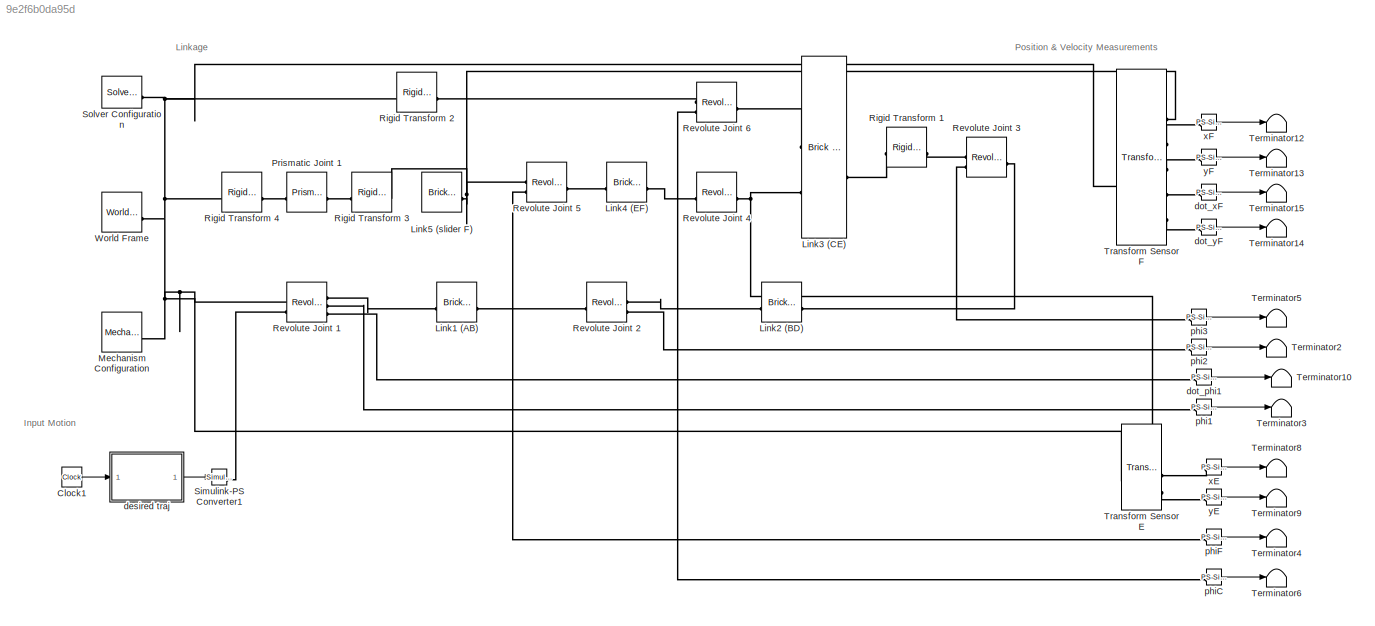
MODEL slx_9e2f6b0da95d
KIND model
CONFIG AbsTol = 1e-3
CONFIG EnableMultiTasking = on
CONFIG FixedStep = 0.001
CONFIG MaxStep = auto
CONFIG MinStep = auto
CONFIG RelTol = 1e-3
CONFIG SampleTimeConstraint = Unconstrained
CONFIG SolverName = ode4
CONFIG StartTime = 0.0
CONFIG StopTime = 10
BLOCK [Clock] Clock1
BLOCK [Reference] Link1 (AB)  REF=sm_lib/Body Elements/Brick Solid
  SourceBlock = sm_lib/Body Elements/Brick Solid
  SourceType = Brick Solid
BLOCK [Reference] Link2 (BD)  REF=sm_lib/Body Elements/Brick Solid
  SourceBlock = sm_lib/Body Elements/Brick Solid
  SourceType = Brick Solid
BLOCK [Reference] Link3 (CE)  REF=sm_lib/Body Elements/Brick Solid
  SourceBlock = sm_lib/Body Elements/Brick Solid
  SourceType = Brick Solid
BLOCK [Reference] Link4 (EF)  REF=sm_lib/Body Elements/Brick Solid
  SourceBlock = sm_lib/Body Elements/Brick Solid
  SourceType = Brick Solid
BLOCK [Reference] Link5 (slider F)  REF=sm_lib/Body Elements/Brick Solid
  SourceBlock = sm_lib/Body Elements/Brick Solid
  SourceType = Brick Solid
BLOCK [Reference] Mechanism Configuration  REF=sm_lib/Utilities/Mechanism
Configuration
  SourceBlock = sm_lib/Utilities/Mechanism\nConfiguration
  SourceType = Mechanism\nConfiguration
BLOCK [Reference] Prismatic Joint 1  REF=sm_lib/Joints/Prismatic
Joint
  SourceBlock = sm_lib/Joints/Prismatic\nJoint
  SourceType = Prismatic\nJoint
BLOCK [Reference] Revolute Joint 1  REF=sm_lib/Joints/Revolute Joint
  SourceBlock = sm_lib/Joints/Revolute Joint
  SourceType = Revolute Joint
BLOCK [Reference] Revolute Joint 2  REF=sm_lib/Joints/Revolute Joint
  SourceBlock = sm_lib/Joints/Revolute Joint
  SourceType = Revolute Joint
BLOCK [Reference] Revolute Joint 3  REF=sm_lib/Joints/Revolute Joint
  SourceBlock = sm_lib/Joints/Revolute Joint
  SourceType = Revolute Joint
BLOCK [Reference] Revolute Joint 4  REF=sm_lib/Joints/Revolute Joint
  SourceBlock = sm_lib/Joints/Revolute Joint
  SourceType = Revolute Joint
BLOCK [Reference] Revolute Joint 5  REF=sm_lib/Joints/Revolute Joint
  SourceBlock = sm_lib/Joints/Revolute Joint
  SourceType = Revolute Joint
BLOCK [Reference] Revolute Joint 6  REF=sm_lib/Joints/Revolute Joint
  SourceBlock = sm_lib/Joints/Revolute Joint
  SourceType = Revolute Joint
BLOCK [Reference] Rigid Transform 1  REF=sm_lib/Frames and
Transforms/Rigid
Transform
  SourceBlock = sm_lib/Frames and\nTransforms/Rigid\nTransform
  SourceType = Rigid\nTransform
BLOCK [Reference] Rigid Transform 2  REF=sm_lib/Frames and
Transforms/Rigid
Transform
  SourceBlock = sm_lib/Frames and\nTransforms/Rigid\nTransform
  SourceType = Rigid\nTransform
BLOCK [Reference] Rigid Transform 3  REF=sm_lib/Frames and
Transforms/Rigid
Transform
  SourceBlock = sm_lib/Frames and\nTransforms/Rigid\nTransform
  SourceType = Rigid\nTransform
BLOCK [Reference] Rigid Transform 4  REF=sm_lib/Frames and
Transforms/Rigid
Transform
  SourceBlock = sm_lib/Frames and\nTransforms/Rigid\nTransform
  SourceType = Rigid\nTransform
BLOCK [Reference] Simulink-PS Converter1  REF=nesl_utility/Simulink-PS
Converter
  SourceBlock = nesl_utility/Simulink-PS\nConverter
  SourceType = Simulink-PS\nConverter
BLOCK [Reference] Solver Configuration  REF=nesl_utility/Solver
Configuration
  SourceBlock = nesl_utility/Solver\nConfiguration
  SourceType = Solver\nConfiguration
BLOCK [Terminator] Terminator10
BLOCK [Terminator] Terminator12
BLOCK [Terminator] Terminator13
BLOCK [Terminator] Terminator14
BLOCK [Terminator] Terminator15
BLOCK [Terminator] Terminator2
BLOCK [Terminator] Terminator3
BLOCK [Terminator] Terminator4
BLOCK [Terminator] Terminator5
BLOCK [Terminator] Terminator6
BLOCK [Terminator] Terminator8
BLOCK [Terminator] Terminator9
BLOCK [Reference] Transform Sensor E  REF=sm_lib/Frames and
Transforms/Transform
Sensor
  SourceBlock = sm_lib/Frames and\nTransforms/Transform\nSensor
  SourceType = Transform\nSensor
BLOCK [Reference] Transform Sensor F  REF=sm_lib/Frames and
Transforms/Transform
Sensor
  SourceBlock = sm_lib/Frames and\nTransforms/Transform\nSensor
  SourceType = Transform\nSensor
BLOCK [Reference] World Frame  REF=sm_lib/Frames and
Transforms/World Frame
  SourceBlock = sm_lib/Frames and\nTransforms/World Frame
  SourceType = World Frame
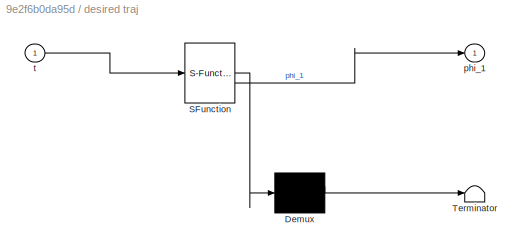
BLOCK [SubSystem] desired traj
  ErrorFcn = Stateflow.Translate.translate
  PermitHierarchicalResolution = ExplicitOnly
  SFBlockType = MATLAB Function
  TreatAsAtomicUnit = on
BLOCK [Demux] desired traj/ Demux 
  Outputs = 1
BLOCK [S-Function] desired traj/ SFunction 
  EnableBusSupport = on
  FunctionName = sf_sfun
  PortCounts = [1 2]
  SFcnIsStateOwnerBlock = off
  SFunctionDeploymentMode = off
  Tag = Stateflow S-Function 1
BLOCK [Terminator] desired traj/ Terminator 
BLOCK [Outport] desired traj/phi_1
BLOCK [Inport] desired traj/t
BLOCK [Reference] dot_phi1  REF=nesl_utility/PS-Simulink
Converter
  SourceBlock = nesl_utility/PS-Simulink\nConverter
  SourceType = PS-Simulink\nConverter
BLOCK [Reference] dot_xF  REF=nesl_utility/PS-Simulink
Converter
  SourceBlock = nesl_utility/PS-Simulink\nConverter
  SourceType = PS-Simulink\nConverter
BLOCK [Reference] dot_yF  REF=nesl_utility/PS-Simulink
Converter
  SourceBlock = nesl_utility/PS-Simulink\nConverter
  SourceType = PS-Simulink\nConverter
BLOCK [Reference] phi1  REF=nesl_utility/PS-Simulink
Converter
  SourceBlock = nesl_utility/PS-Simulink\nConverter
  SourceType = PS-Simulink\nConverter
BLOCK [Reference] phi2  REF=nesl_utility/PS-Simulink
Converter
  SourceBlock = nesl_utility/PS-Simulink\nConverter
  SourceType = PS-Simulink\nConverter
BLOCK [Reference] phi3  REF=nesl_utility/PS-Simulink
Converter
  SourceBlock = nesl_utility/PS-Simulink\nConverter
  SourceType = PS-Simulink\nConverter
BLOCK [Reference] phiC  REF=nesl_utility/PS-Simulink
Converter
  SourceBlock = nesl_utility/PS-Simulink\nConverter
  SourceType = PS-Simulink\nConverter
BLOCK [Reference] phiF  REF=nesl_utility/PS-Simulink
Converter
  SourceBlock = nesl_utility/PS-Simulink\nConverter
  SourceType = PS-Simulink\nConverter
BLOCK [Reference] xE  REF=nesl_utility/PS-Simulink
Converter
  SourceBlock = nesl_utility/PS-Simulink\nConverter
  SourceType = PS-Simulink\nConverter
BLOCK [Reference] xF  REF=nesl_utility/PS-Simulink
Converter
  SourceBlock = nesl_utility/PS-Simulink\nConverter
  SourceType = PS-Simulink\nConverter
BLOCK [Reference] yE  REF=nesl_utility/PS-Simulink
Converter
  SourceBlock = nesl_utility/PS-Simulink\nConverter
  SourceType = PS-Simulink\nConverter
BLOCK [Reference] yF  REF=nesl_utility/PS-Simulink
Converter
  SourceBlock = nesl_utility/PS-Simulink\nConverter
  SourceType = PS-Simulink\nConverter
ANNOTATION (root): Input Motion
ANNOTATION (root): Linkage
ANNOTATION (root): Position & Velocity Measurements
LINE Clock1:1 -> desired traj:1
LINE desired traj:1 -> Simulink-PS Converter1:1
LINE dot_phi1:1 -> Terminator10:1
LINE dot_xF:1 -> Terminator15:1
LINE dot_yF:1 -> Terminator14:1
LINE phi1:1 -> Terminator3:1
LINE phi2:1 -> Terminator2:1
LINE phi3:1 -> Terminator5:1
LINE phiC:1 -> Terminator6:1
LINE phiF:1 -> Terminator4:1
LINE xE:1 -> Terminator8:1
LINE xF:1 -> Terminator12:1
LINE yE:1 -> Terminator9:1
LINE yF:1 -> Terminator13:1
PLINE Link1 (AB):LConn1 -- Revolute Joint 1:RConn1
PLINE Link1 (AB):RConn1 -- Revolute Joint 2:LConn1
PLINE Link2 (BD):LConn1 -- Revolute Joint 2:RConn1
PLINE Link2 (BD):RConn1 -- Revolute Joint 3:LConn1
PLINE Link3 (CE):LConn1 -- Revolute Joint 6:LConn1
PNET net1: Link3 (CE):LConn2 -- Revolute Joint 4:LConn1 -- Transform Sensor E:RConn1
PLINE Link3 (CE):RConn1 -- Rigid Transform 1:LConn1
PLINE Link4 (EF):LConn1 -- Revolute Joint 4:RConn1
PLINE Link4 (EF):RConn1 -- Revolute Joint 5:LConn1
PNET net2: Link5 (slider F):RConn1 -- Revolute Joint 5:RConn1 -- Rigid Transform 3:LConn1 -- Transform Sensor F:RConn1
PNET net3: Mechanism Configuration:RConn1 -- Revolute Joint 1:LConn1 -- Rigid Transform 2:LConn1 -- Rigid Transform 4:LConn1 -- Solver Configuration:RConn1 -- Transform Sensor E:LConn1 -- Transform Sensor F:LConn1 -- World Frame:RConn1
PLINE Prismatic Joint 1:LConn1 -- Rigid Transform 3:RConn1
PLINE Prismatic Joint 1:RConn1 -- Rigid Transform 4:RConn1
PLINE Revolute Joint 1:LConn2 -- Simulink-PS Converter1:RConn1
PLINE Revolute Joint 1:RConn2 -- phi1:LConn1
PLINE Revolute Joint 1:RConn3 -- dot_phi1:LConn1
PLINE Revolute Joint 2:RConn2 -- phi2:LConn1
PLINE Revolute Joint 3:RConn1 -- Rigid Transform 1:RConn1
PLINE Revolute Joint 3:RConn2 -- phi3:LConn1
PLINE Revolute Joint 5:RConn2 -- phiF:LConn1
PLINE Revolute Joint 6:RConn1 -- Rigid Transform 2:RConn1
PLINE Revolute Joint 6:RConn2 -- phiC:LConn1
PLINE Transform Sensor E:RConn2 -- xE:LConn1
PLINE Transform Sensor E:RConn3 -- yE:LConn1
PLINE Transform Sensor F:RConn2 -- xF:LConn1
PLINE Transform Sensor F:RConn3 -- yF:LConn1
PLINE Transform Sensor F:RConn4 -- dot_xF:LConn1
PLINE Transform Sensor F:RConn5 -- dot_yF:LConn1
note: PNET lines group multi-terminal physical nets as a canonical sorted terminal list (undirected conserving connections); 2-terminal nets keep the pairwise PLINE form
CHART desired traj states=1 transitions=1
  STATE_LABEL 'eML_blk_kernel()'
  STATE_LABEL 'SCRIPT:\nfunction phi_1 = phi_1(t)\n\nphi_10 = deg2rad(180); % p init\nk=-20; % vel -20 rad/s\nphi_1=phi_10 + k*t;\n\n'
CHART  states=0 transitions=0
